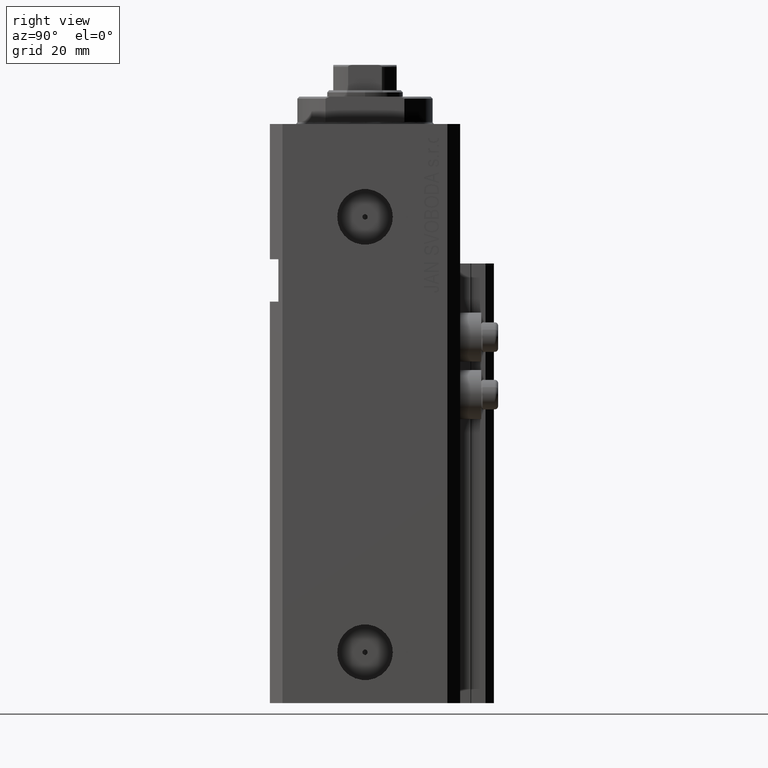
[diagram: clean part render]
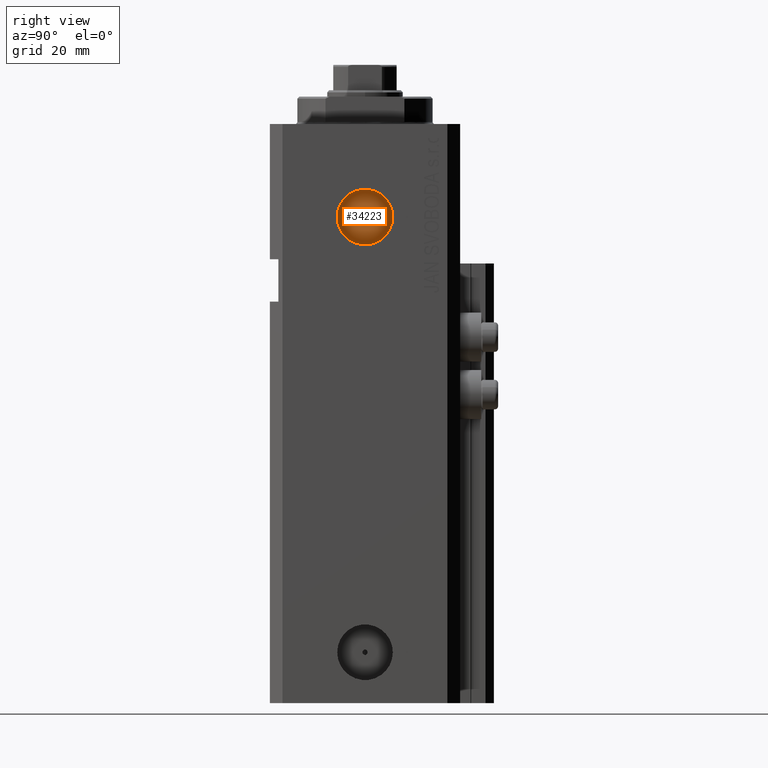
[diagram: same view with one face highlighted and labeled with its STEP entity id]
A machine part, right view. The second image highlights one B-rep face of the part: STEP entity #34223.
In plain terms, the highlighted planar face has unit normal (1, -0, 0).
Its self-contained STEP definition (entity closure, byte-faithful):
#364 = DIRECTION ( 'NONE',  ( 1.110223024625158749E-14, 1.000000000000000000, 0.000000000000000000 ) ) ;
#406 = VERTEX_POINT ( 'NONE', #29967 ) ;
#3477 = ORIENTED_EDGE ( 'NONE', *, *, #27187, .F. ) ;
#4301 = CARTESIAN_POINT ( 'NONE',  ( 19.39999999999677271, -2.588741187226566838E-13, -22.00000000000000000 ) ) ;
#5067 = DIRECTION ( 'NONE',  ( 1.000000000000000000, -1.334402673828349134E-14, 0.000000000000000000 ) ) ;
#9913 = AXIS2_PLACEMENT_3D ( 'NONE', #29740, #44637, #15115 ) ;
#10330 = CIRCLE ( 'NONE', #18894, 0.6249999999999987788 ) ;
#10901 = DIRECTION ( 'NONE',  ( 1.000000000000000000, -1.334402673828349134E-14, 0.000000000000000000 ) ) ;
#11835 = CARTESIAN_POINT ( 'NONE',  ( 19.39999999999677271, -2.588741187226566838E-13, -22.00000000000000000 ) ) ;
#12297 = ORIENTED_EDGE ( 'NONE', *, *, #17004, .F. ) ;
#15115 = DIRECTION ( 'NONE',  ( 1.318178933113074700E-14, 1.000000000000000000, 0.000000000000000000 ) ) ;
#17004 = EDGE_CURVE ( 'NONE', #20866, #27149, #25239, .T. ) ;
#18437 = DIRECTION ( 'NONE',  ( 1.110223024625158749E-14, 1.000000000000000000, 0.000000000000000000 ) ) ;
#18894 = AXIS2_PLACEMENT_3D ( 'NONE', #4301, #10901, #18437 ) ;
#18917 = CARTESIAN_POINT ( 'NONE',  ( 19.39999999999676561, -0.6250000000002576828, -22.00000000000000000 ) ) ;
#19140 = EDGE_LOOP ( 'NONE', ( #28374, #44933 ) ) ;
#19935 = DIRECTION ( 'NONE',  ( 1.334402673828349134E-14, 1.000000000000000000, 0.000000000000000000 ) ) ;
#20476 = AXIS2_PLACEMENT_3D ( 'NONE', #11835, #37673, #364 ) ;
#20662 = AXIS2_PLACEMENT_3D ( 'NONE', #34078, #5067, #19935 ) ;
#20866 = VERTEX_POINT ( 'NONE', #39449 ) ;
#22430 = VERTEX_POINT ( 'NONE', #44663 ) ;
#22631 = FACE_BOUND ( 'NONE', #45369, .T. ) ;
#23589 = PLANE ( 'NONE',  #20662 ) ;
#25239 = CIRCLE ( 'NONE', #20476, 0.6249999999999987788 ) ;
#27149 = VERTEX_POINT ( 'NONE', #18917 ) ;
#27187 = EDGE_CURVE ( 'NONE', #27149, #20866, #10330, .T. ) ;
#28374 = ORIENTED_EDGE ( 'NONE', *, *, #39490, .T. ) ;
#28762 = DIRECTION ( 'NONE',  ( 1.318178933113074700E-14, 1.000000000000000000, 0.000000000000000000 ) ) ;
#29740 = CARTESIAN_POINT ( 'NONE',  ( 19.39999999999677271, -2.588741187226566333E-13, -22.00000000000000000 ) ) ;
#29967 = CARTESIAN_POINT ( 'NONE',  ( 19.39999999999668745, -6.580000000000261196, -22.00000000000000000 ) ) ;
#34078 = CARTESIAN_POINT ( 'NONE',  ( 19.39999999999677271, -2.588741187226566333E-13, -22.00000000000000000 ) ) ;
#34223 = ADVANCED_FACE ( 'NONE', ( #22631, #37499 ), #23589, .T. ) ;
#37022 = CARTESIAN_POINT ( 'NONE',  ( 19.39999999999677271, -2.588741187226566333E-13, -22.00000000000000000 ) ) ;
#37499 = FACE_OUTER_BOUND ( 'NONE', #19140, .T. ) ;
#37673 = DIRECTION ( 'NONE',  ( 1.000000000000000000, -1.334402673828349134E-14, 0.000000000000000000 ) ) ;
#39449 = CARTESIAN_POINT ( 'NONE',  ( 19.39999999999677982, 0.6249999999997398747, -22.00000000000000000 ) ) ;
#39490 = EDGE_CURVE ( 'NONE', #22430, #406, #45649, .T. ) ;
#41022 = EDGE_CURVE ( 'NONE', #406, #22430, #45720, .T. ) ;
#43329 = AXIS2_PLACEMENT_3D ( 'NONE', #37022, #43878, #28762 ) ;
#43878 = DIRECTION ( 'NONE',  ( 1.000000000000000000, -1.334402673828349134E-14, 0.000000000000000000 ) ) ;
#44637 = DIRECTION ( 'NONE',  ( 1.000000000000000000, -1.334402673828349134E-14, 0.000000000000000000 ) ) ;
#44663 = CARTESIAN_POINT ( 'NONE',  ( 19.39999999999686153, 6.579999999999744276, -22.00000000000000000 ) ) ;
#44933 = ORIENTED_EDGE ( 'NONE', *, *, #41022, .T. ) ;
#45369 = EDGE_LOOP ( 'NONE', ( #12297, #3477 ) ) ;
#45649 = CIRCLE ( 'NONE', #43329, 6.580000000000002736 ) ;
#45720 = CIRCLE ( 'NONE', #9913, 6.580000000000002736 ) ;